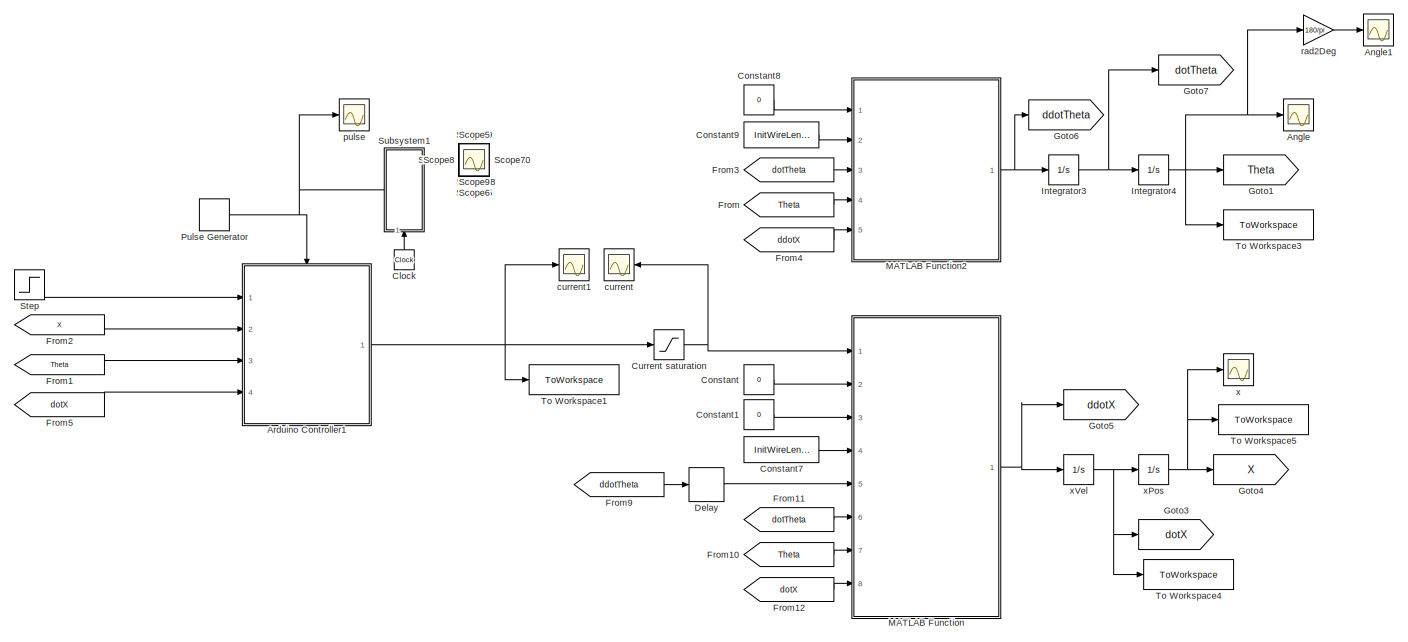
[diagram: root canvas - part 1/2, most of the canvas]
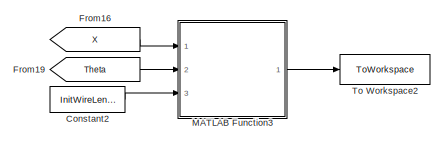
[diagram: root canvas - part 2/2, top right region]
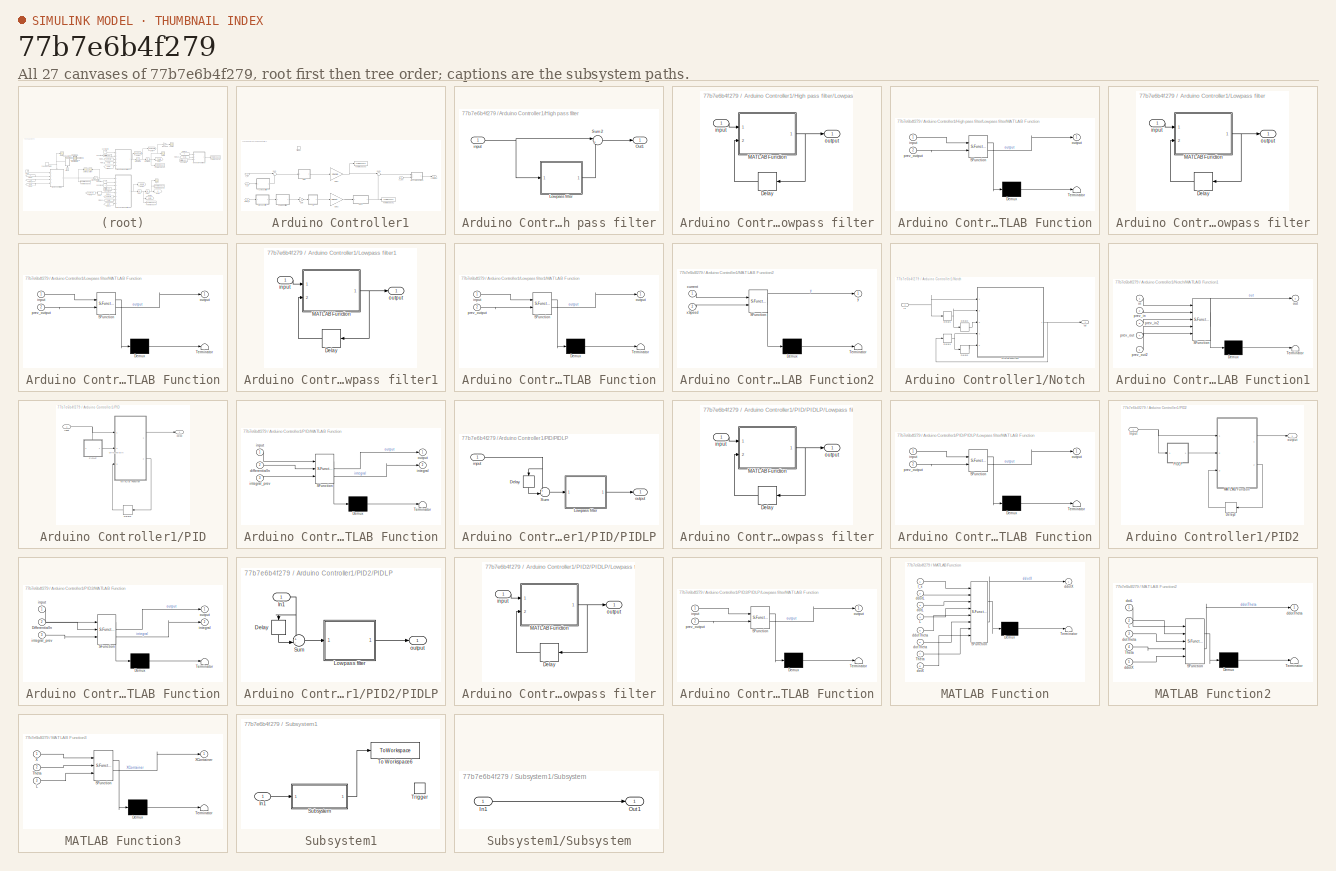
[diagram: thumbnail index - all 27 canvases of the model, root first then tree order]
MODEL slx_77b7e6b4f279
KIND model
CONFIG AbsTol = auto
CONFIG EnableMultiTasking = off
CONFIG FixedStep = auto
CONFIG MaxStep = 0.0001
CONFIG MinStep = auto
CONFIG RelTol = 1e-3
CONFIG SampleTimeConstraint = Unconstrained
CONFIG SolverName = VariableStepAuto
CONFIG StartTime = 0.0
CONFIG StopTime = 21
BLOCK [Scope] Angle
  Floating = off
  NumInputPorts = 1
  Ports = [1]
  ScopeSpecificationString = Simulink.scopes.TimeScopeBlockCfg('CurrentConfiguration', extmgr.ConfigurationSet(extmgr.Configuration('Core','General UI',true),extmgr.Configuration('Core','Source UI',true),extmgr.Configuration('Sources','WiredSimulink',true,'DataLoggingVariableName','ScopeData2'),extmgr.Configuration('Visuals','Time Domain',true,'SerializedDisplays',{struct('MinYLimReal','-0.03802','MaxYLimReal','0.01882','YLab...<+1470ch>
BLOCK [Scope] Angle1
  Floating = off
  NumInputPorts = 1
  Ports = [1]
  ScopeSpecificationString = Simulink.scopes.TimeScopeBlockCfg('CurrentConfiguration', extmgr.ConfigurationSet(extmgr.Configuration('Core','General UI',true),extmgr.Configuration('Core','Source UI',true),extmgr.Configuration('Sources','WiredSimulink',true,'DataLoggingVariableName','ScopeData1'),extmgr.Configuration('Visuals','Time Domain',true,'SerializedDisplays',{struct('MinYLimReal','-9.72683','MaxYLimReal','10.59698','YLa...<+1495ch>
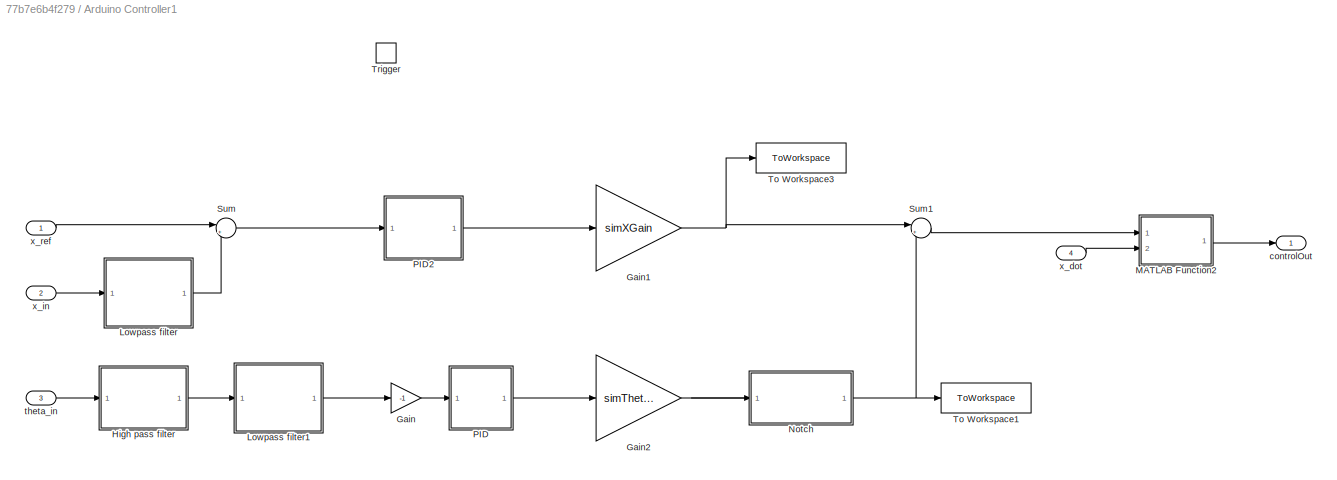
BLOCK [SubSystem] Arduino Controller1
  Ports = [4, 1, 0, 1]
  RequestExecContextInheritance = off
BLOCK [Gain] Arduino Controller1/Gain
  Gain = -1
BLOCK [Gain] Arduino Controller1/Gain1
  Gain = simXGain
BLOCK [Gain] Arduino Controller1/Gain2
  Gain = simThetaGain
BLOCK [SubSystem] Arduino Controller1/High pass filter
  Ports = [1, 1]
  RequestExecContextInheritance = off
BLOCK [SubSystem] Arduino Controller1/High pass filter/Lowpass filter
  Ports = [1, 1]
  RequestExecContextInheritance = off
BLOCK [Delay] Arduino Controller1/High pass filter/Lowpass filter/Delay
  DelayLength = 1
  InitialCondition = 0
  InputPortMap = u0
  NameLocation = top
  Ports = [1, 1]
BLOCK [SubSystem] Arduino Controller1/High pass filter/Lowpass filter/MATLAB Function
  ErrorFcn = Stateflow.Translate.translate
  PermitHierarchicalResolution = ExplicitOnly
  Ports = [2, 1]
  RequestExecContextInheritance = off
  SFBlockType = MATLAB Function
  TreatAsAtomicUnit = on
BLOCK [Demux] Arduino Controller1/High pass filter/Lowpass filter/MATLAB Function/ Demux 
  Outputs = 1
  Ports = [1, 1]
BLOCK [S-Function] Arduino Controller1/High pass filter/Lowpass filter/MATLAB Function/ SFunction 
  EnableBusSupport = on
  FunctionName = sf_sfun
  Parameters = hptau,ts
  PortCounts = [2 2]
  Ports = [2, 2]
  SFcnIsStateOwnerBlock = off
  SFunctionDeploymentMode = off
  Tag = Stateflow S-Function 1
BLOCK [Terminator] Arduino Controller1/High pass filter/Lowpass filter/MATLAB Function/ Terminator 
BLOCK [Inport] Arduino Controller1/High pass filter/Lowpass filter/MATLAB Function/input
BLOCK [Outport] Arduino Controller1/High pass filter/Lowpass filter/MATLAB Function/output
BLOCK [Inport] Arduino Controller1/High pass filter/Lowpass filter/MATLAB Function/prev_output
  Port = 2
BLOCK [Inport] Arduino Controller1/High pass filter/Lowpass filter/input
BLOCK [Outport] Arduino Controller1/High pass filter/Lowpass filter/output
BLOCK [Outport] Arduino Controller1/High pass filter/Out1
BLOCK [Sum] Arduino Controller1/High pass filter/Sum2
  Inputs = |+-
  Ports = [2, 1]
BLOCK [Inport] Arduino Controller1/High pass filter/input
BLOCK [SubSystem] Arduino Controller1/Lowpass filter
  Ports = [1, 1]
  RequestExecContextInheritance = off
BLOCK [Delay] Arduino Controller1/Lowpass filter/Delay
  DelayLength = 1
  InitialCondition = 0
  InputPortMap = u0
  NameLocation = top
  Ports = [1, 1]
BLOCK [SubSystem] Arduino Controller1/Lowpass filter/MATLAB Function
  ErrorFcn = Stateflow.Translate.translate
  PermitHierarchicalResolution = ExplicitOnly
  Ports = [2, 1]
  RequestExecContextInheritance = off
  SFBlockType = MATLAB Function
  TreatAsAtomicUnit = on
BLOCK [Demux] Arduino Controller1/Lowpass filter/MATLAB Function/ Demux 
  Outputs = 1
  Ports = [1, 1]
BLOCK [S-Function] Arduino Controller1/Lowpass filter/MATLAB Function/ SFunction 
  EnableBusSupport = on
  FunctionName = sf_sfun
  Parameters = lpxPostau,ts
  PortCounts = [2 2]
  Ports = [2, 2]
  SFcnIsStateOwnerBlock = off
  SFunctionDeploymentMode = off
  Tag = Stateflow S-Function 11
BLOCK [Terminator] Arduino Controller1/Lowpass filter/MATLAB Function/ Terminator 
BLOCK [Inport] Arduino Controller1/Lowpass filter/MATLAB Function/input
BLOCK [Outport] Arduino Controller1/Lowpass filter/MATLAB Function/output
BLOCK [Inport] Arduino Controller1/Lowpass filter/MATLAB Function/prev_output
  Port = 2
BLOCK [Inport] Arduino Controller1/Lowpass filter/input
BLOCK [Outport] Arduino Controller1/Lowpass filter/output
BLOCK [SubSystem] Arduino Controller1/Lowpass filter1
  Ports = [1, 1]
  RequestExecContextInheritance = off
BLOCK [Delay] Arduino Controller1/Lowpass filter1/Delay
  DelayLength = 1
  InitialCondition = 0
  InputPortMap = u0
  NameLocation = top
  Ports = [1, 1]
BLOCK [SubSystem] Arduino Controller1/Lowpass filter1/MATLAB Function
  ErrorFcn = Stateflow.Translate.translate
  PermitHierarchicalResolution = ExplicitOnly
  Ports = [2, 1]
  RequestExecContextInheritance = off
  SFBlockType = MATLAB Function
  TreatAsAtomicUnit = on
BLOCK [Demux] Arduino Controller1/Lowpass filter1/MATLAB Function/ Demux 
  Outputs = 1
  Ports = [1, 1]
BLOCK [S-Function] Arduino Controller1/Lowpass filter1/MATLAB Function/ SFunction 
  EnableBusSupport = on
  FunctionName = sf_sfun
  Parameters = lpxPostau,ts
  PortCounts = [2 2]
  Ports = [2, 2]
  SFcnIsStateOwnerBlock = off
  SFunctionDeploymentMode = off
  Tag = Stateflow S-Function 12
BLOCK [Terminator] Arduino Controller1/Lowpass filter1/MATLAB Function/ Terminator 
BLOCK [Inport] Arduino Controller1/Lowpass filter1/MATLAB Function/input
BLOCK [Outport] Arduino Controller1/Lowpass filter1/MATLAB Function/output
BLOCK [Inport] Arduino Controller1/Lowpass filter1/MATLAB Function/prev_output
  Port = 2
BLOCK [Inport] Arduino Controller1/Lowpass filter1/input
BLOCK [Outport] Arduino Controller1/Lowpass filter1/output
BLOCK [SubSystem] Arduino Controller1/MATLAB Function2
  ErrorFcn = Stateflow.Translate.translate
  PermitHierarchicalResolution = ExplicitOnly
  Ports = [2, 1]
  RequestExecContextInheritance = off
  SFBlockType = MATLAB Function
  TreatAsAtomicUnit = on
BLOCK [Demux] Arduino Controller1/MATLAB Function2/ Demux 
  Outputs = 1
  Ports = [1, 1]
BLOCK [S-Function] Arduino Controller1/MATLAB Function2/ SFunction 
  EnableBusSupport = on
  FunctionName = sf_sfun
  PortCounts = [2 2]
  Ports = [2, 2]
  SFcnIsStateOwnerBlock = off
  SFunctionDeploymentMode = off
  Tag = Stateflow S-Function 7
BLOCK [Terminator] Arduino Controller1/MATLAB Function2/ Terminator 
BLOCK [Inport] Arduino Controller1/MATLAB Function2/current
BLOCK [Inport] Arduino Controller1/MATLAB Function2/xSpeed
  Port = 2
BLOCK [Outport] Arduino Controller1/MATLAB Function2/y
BLOCK [SubSystem] Arduino Controller1/Notch
  Ports = [1, 1]
  RequestExecContextInheritance = off
BLOCK [Delay] Arduino Controller1/Notch/Delay1
  DelayLength = 1
  InitialCondition = 0
  InputPortMap = u0
  Ports = [1, 1]
BLOCK [Delay] Arduino Controller1/Notch/Delay2
  DelayLength = 1
  InitialCondition = 0
  InputPortMap = u0
  Ports = [1, 1]
BLOCK [Delay] Arduino Controller1/Notch/Delay4
  DelayLength = 1
  InitialCondition = 0
  InputPortMap = u0
  Ports = [1, 1]
BLOCK [Delay] Arduino Controller1/Notch/Delay5
  DelayLength = 1
  InitialCondition = 0
  InputPortMap = u0
  Ports = [1, 1]
BLOCK [SubSystem] Arduino Controller1/Notch/MATLAB Function1
  ErrorFcn = Stateflow.Translate.translate
  PermitHierarchicalResolution = ExplicitOnly
  Ports = [5, 1]
  RequestExecContextInheritance = off
  SFBlockType = MATLAB Function
  TreatAsAtomicUnit = on
BLOCK [Demux] Arduino Controller1/Notch/MATLAB Function1/ Demux 
  Outputs = 1
  Ports = [1, 1]
BLOCK [S-Function] Arduino Controller1/Notch/MATLAB Function1/ SFunction 
  EnableBusSupport = on
  FunctionName = sf_sfun
  PortCounts = [5 2]
  Ports = [5, 2]
  SFcnIsStateOwnerBlock = off
  SFunctionDeploymentMode = off
  Tag = Stateflow S-Function 5
BLOCK [Terminator] Arduino Controller1/Notch/MATLAB Function1/ Terminator 
BLOCK [Inport] Arduino Controller1/Notch/MATLAB Function1/in
BLOCK [Outport] Arduino Controller1/Notch/MATLAB Function1/out
BLOCK [Inport] Arduino Controller1/Notch/MATLAB Function1/prev_in
  Port = 2
BLOCK [Inport] Arduino Controller1/Notch/MATLAB Function1/prev_in2
  Port = 3
BLOCK [Inport] Arduino Controller1/Notch/MATLAB Function1/prev_out
  Port = 4
BLOCK [Inport] Arduino Controller1/Notch/MATLAB Function1/prev_out2
  Port = 5
BLOCK [Inport] Arduino Controller1/Notch/in
BLOCK [Outport] Arduino Controller1/Notch/out
BLOCK [SubSystem] Arduino Controller1/PID
  Ports = [1, 1]
  RequestExecContextInheritance = off
BLOCK [Delay] Arduino Controller1/PID/Delay3
  DelayLength = 1
  InitialCondition = 0
  InputPortMap = u0
  NameLocation = top
  Ports = [1, 1]
BLOCK [SubSystem] Arduino Controller1/PID/MATLAB Function
  ErrorFcn = Stateflow.Translate.translate
  PermitHierarchicalResolution = ExplicitOnly
  Ports = [3, 2]
  RequestExecContextInheritance = off
  SFBlockType = MATLAB Function
  TreatAsAtomicUnit = on
BLOCK [Demux] Arduino Controller1/PID/MATLAB Function/ Demux 
  Outputs = 1
  Ports = [1, 1]
BLOCK [S-Function] Arduino Controller1/PID/MATLAB Function/ SFunction 
  EnableBusSupport = on
  FunctionName = sf_sfun
  Parameters = ts
  PortCounts = [3 3]
  Ports = [3, 3]
  SFcnIsStateOwnerBlock = off
  SFunctionDeploymentMode = off
  Tag = Stateflow S-Function 6
BLOCK [Terminator] Arduino Controller1/PID/MATLAB Function/ Terminator 
BLOCK [Inport] Arduino Controller1/PID/MATLAB Function/differentialIn
  Port = 2
BLOCK [Inport] Arduino Controller1/PID/MATLAB Function/input
BLOCK [Outport] Arduino Controller1/PID/MATLAB Function/integral
  Port = 2
BLOCK [Inport] Arduino Controller1/PID/MATLAB Function/integral_prev
  Port = 3
BLOCK [Outport] Arduino Controller1/PID/MATLAB Function/output
BLOCK [SubSystem] Arduino Controller1/PID/PIDLP
  PortSchema = {"entries":[{"content":{"sides":[{"content":{"connectorIds":[]},"type":"ConnectorPlacement.EquallySpacedRectSide","uuid":"d3ec65c8-fd45-49f9-916c-a8c1f5c7b970"},{"content":{"connectorIds":["Out1"],"side":"RIGHT"},"type":"ConnectorPlacement.EquallySpacedRectSide","uuid":"4f9c2e43-6a5d-46ea-b9d2-fae3b3feabbe"},{"content":{"connectorIds":["In1"],"side":"TOP"},"type":"ConnectorPlacement.EquallySpacedR...<+240ch>
  Ports = [1, 1]
  RequestExecContextInheritance = off
BLOCK [Delay] Arduino Controller1/PID/PIDLP/Delay
  DelayLength = 1
  InitialCondition = 0
  InputPortMap = u0
  NameLocation = left
  Ports = [1, 1]
BLOCK [SubSystem] Arduino Controller1/PID/PIDLP/Lowpass filter
  Ports = [1, 1]
  RequestExecContextInheritance = off
BLOCK [Delay] Arduino Controller1/PID/PIDLP/Lowpass filter/Delay
  DelayLength = 1
  InitialCondition = 0
  InputPortMap = u0
  NameLocation = top
  Ports = [1, 1]
BLOCK [SubSystem] Arduino Controller1/PID/PIDLP/Lowpass filter/MATLAB Function
  ErrorFcn = Stateflow.Translate.translate
  PermitHierarchicalResolution = ExplicitOnly
  Ports = [2, 1]
  RequestExecContextInheritance = off
  SFBlockType = MATLAB Function
  TreatAsAtomicUnit = on
BLOCK [Demux] Arduino Controller1/PID/PIDLP/Lowpass filter/MATLAB Function/ Demux 
  Outputs = 1
  Ports = [1, 1]
BLOCK [S-Function] Arduino Controller1/PID/PIDLP/Lowpass filter/MATLAB Function/ SFunction 
  EnableBusSupport = on
  FunctionName = sf_sfun
  Parameters = lpThetaContau,ts
  PortCounts = [2 2]
  Ports = [2, 2]
  SFcnIsStateOwnerBlock = off
  SFunctionDeploymentMode = off
  Tag = Stateflow S-Function 10
BLOCK [Terminator] Arduino Controller1/PID/PIDLP/Lowpass filter/MATLAB Function/ Terminator 
BLOCK [Inport] Arduino Controller1/PID/PIDLP/Lowpass filter/MATLAB Function/input
BLOCK [Outport] Arduino Controller1/PID/PIDLP/Lowpass filter/MATLAB Function/output
BLOCK [Inport] Arduino Controller1/PID/PIDLP/Lowpass filter/MATLAB Function/prev_output
  Port = 2
BLOCK [Inport] Arduino Controller1/PID/PIDLP/Lowpass filter/input
BLOCK [Outport] Arduino Controller1/PID/PIDLP/Lowpass filter/output
BLOCK [Sum] Arduino Controller1/PID/PIDLP/Sum
  Inputs = +-|
  Ports = [2, 1]
BLOCK [Inport] Arduino Controller1/PID/PIDLP/input
BLOCK [Outport] Arduino Controller1/PID/PIDLP/output
BLOCK [Inport] Arduino Controller1/PID/input
BLOCK [Outport] Arduino Controller1/PID/output
BLOCK [SubSystem] Arduino Controller1/PID2
  Ports = [1, 1]
  RequestExecContextInheritance = off
BLOCK [Delay] Arduino Controller1/PID2/Delay3
  DelayLength = 1
  InitialCondition = 0
  InputPortMap = u0
  NameLocation = top
  Ports = [1, 1]
BLOCK [Inport] Arduino Controller1/PID2/Input
BLOCK [SubSystem] Arduino Controller1/PID2/MATLAB Function
  ErrorFcn = Stateflow.Translate.translate
  PermitHierarchicalResolution = ExplicitOnly
  Ports = [3, 2]
  RequestExecContextInheritance = off
  SFBlockType = MATLAB Function
  TreatAsAtomicUnit = on
BLOCK [Demux] Arduino Controller1/PID2/MATLAB Function/ Demux 
  Outputs = 1
  Ports = [1, 1]
BLOCK [S-Function] Arduino Controller1/PID2/MATLAB Function/ SFunction 
  EnableBusSupport = on
  FunctionName = sf_sfun
  Parameters = xConD,xConI,xConP
  PortCounts = [3 3]
  Ports = [3, 3]
  SFcnIsStateOwnerBlock = off
  SFunctionDeploymentMode = off
  Tag = Stateflow S-Function 8
BLOCK [Terminator] Arduino Controller1/PID2/MATLAB Function/ Terminator 
BLOCK [Inport] Arduino Controller1/PID2/MATLAB Function/DifferentialIn
  Port = 2
BLOCK [Inport] Arduino Controller1/PID2/MATLAB Function/input
BLOCK [Outport] Arduino Controller1/PID2/MATLAB Function/integral
  Port = 2
BLOCK [Inport] Arduino Controller1/PID2/MATLAB Function/integral_prev
  Port = 3
BLOCK [Outport] Arduino Controller1/PID2/MATLAB Function/output
BLOCK [SubSystem] Arduino Controller1/PID2/PIDLP
  Ports = [1, 1]
  RequestExecContextInheritance = off
BLOCK [Delay] Arduino Controller1/PID2/PIDLP/Delay
  DelayLength = 1
  InitialCondition = 0
  InputPortMap = u0
  NameLocation = left
  Ports = [1, 1]
BLOCK [Inport] Arduino Controller1/PID2/PIDLP/In1
BLOCK [SubSystem] Arduino Controller1/PID2/PIDLP/Lowpass filter
  Ports = [1, 1]
  RequestExecContextInheritance = off
BLOCK [Delay] Arduino Controller1/PID2/PIDLP/Lowpass filter/Delay
  DelayLength = 1
  InitialCondition = 0
  InputPortMap = u0
  NameLocation = top
  Ports = [1, 1]
BLOCK [SubSystem] Arduino Controller1/PID2/PIDLP/Lowpass filter/MATLAB Function
  ErrorFcn = Stateflow.Translate.translate
  PermitHierarchicalResolution = ExplicitOnly
  Ports = [2, 1]
  RequestExecContextInheritance = off
  SFBlockType = MATLAB Function
  TreatAsAtomicUnit = on
BLOCK [Demux] Arduino Controller1/PID2/PIDLP/Lowpass filter/MATLAB Function/ Demux 
  Outputs = 1
  Ports = [1, 1]
BLOCK [S-Function] Arduino Controller1/PID2/PIDLP/Lowpass filter/MATLAB Function/ SFunction 
  EnableBusSupport = on
  FunctionName = sf_sfun
  Parameters = lpxContau,ts
  PortCounts = [2 2]
  Ports = [2, 2]
  SFcnIsStateOwnerBlock = off
  SFunctionDeploymentMode = off
  Tag = Stateflow S-Function 9
BLOCK [Terminator] Arduino Controller1/PID2/PIDLP/Lowpass filter/MATLAB Function/ Terminator 
BLOCK [Inport] Arduino Controller1/PID2/PIDLP/Lowpass filter/MATLAB Function/input
BLOCK [Outport] Arduino Controller1/PID2/PIDLP/Lowpass filter/MATLAB Function/output
BLOCK [Inport] Arduino Controller1/PID2/PIDLP/Lowpass filter/MATLAB Function/prev_output
  Port = 2
BLOCK [Inport] Arduino Controller1/PID2/PIDLP/Lowpass filter/input
BLOCK [Outport] Arduino Controller1/PID2/PIDLP/Lowpass filter/output
BLOCK [Sum] Arduino Controller1/PID2/PIDLP/Sum
  Inputs = +-|
  Ports = [2, 1]
BLOCK [Outport] Arduino Controller1/PID2/PIDLP/output
BLOCK [Outport] Arduino Controller1/PID2/output
BLOCK [Sum] Arduino Controller1/Sum
  Inputs = |+-
  Ports = [2, 1]
BLOCK [Sum] Arduino Controller1/Sum1
  Inputs = |+-
  Ports = [2, 1]
BLOCK [ToWorkspace] Arduino Controller1/To Workspace1
  FixptAsFi = on
  MaxDataPoints = inf
  Ports = [1]
  SampleTime = -1
  VariableName = Anglecon
BLOCK [ToWorkspace] Arduino Controller1/To Workspace3
  FixptAsFi = on
  MaxDataPoints = inf
  Ports = [1]
  SampleTime = -1
  VariableName = Xcon
BLOCK [TriggerPort] Arduino Controller1/Trigger
  PortDimensions = 1
  Ports = []
  StatesWhenEnabling = held
  VariantControl = (inherit)
BLOCK [Outport] Arduino Controller1/controlOut
BLOCK [Inport] Arduino Controller1/theta_in
  Port = 3
BLOCK [Inport] Arduino Controller1/x_dot
  Port = 4
BLOCK [Inport] Arduino Controller1/x_in
  Port = 2
BLOCK [Inport] Arduino Controller1/x_ref
BLOCK [Clock] Clock
  NameLocation = right
BLOCK [Constant] Constant
  Value = 0
BLOCK [Constant] Constant1
  Value = 0
BLOCK [Constant] Constant2
  Value = InitWireLength
BLOCK [Constant] Constant7
  Value = InitWireLength
BLOCK [Constant] Constant8
  Value = 0
BLOCK [Constant] Constant9
  Value = InitWireLength
BLOCK [Saturate] Current saturation
  LowerLimit = -10
  UpperLimit = 10
BLOCK [Delay] Delay
  DelayLength = 1
  InitialCondition = 0
  InputPortMap = u0
  Ports = [1, 1]
BLOCK [From] From
  GotoTag = Theta
BLOCK [From] From1
  GotoTag = Theta
BLOCK [From] From10
  GotoTag = Theta
BLOCK [From] From11
  GotoTag = dotTheta
BLOCK [From] From12
  GotoTag = dotX
BLOCK [From] From16
  GotoTag = X
BLOCK [From] From19
  GotoTag = Theta
BLOCK [From] From2
  GotoTag = X
BLOCK [From] From3
  GotoTag = dotTheta
BLOCK [From] From4
  GotoTag = ddotX
BLOCK [From] From5
  GotoTag = dotX
BLOCK [From] From9
  GotoTag = ddotTheta
BLOCK [Goto] Goto1
  GotoTag = Theta
BLOCK [Goto] Goto3
  GotoTag = dotX
BLOCK [Goto] Goto4
  GotoTag = X
BLOCK [Goto] Goto5
  GotoTag = ddotX
BLOCK [Goto] Goto6
  GotoTag = ddotTheta
BLOCK [Goto] Goto7
  GotoTag = dotTheta
BLOCK [Integrator] Integrator3
  Ports = [1, 1]
BLOCK [Integrator] Integrator4
  Ports = [1, 1]
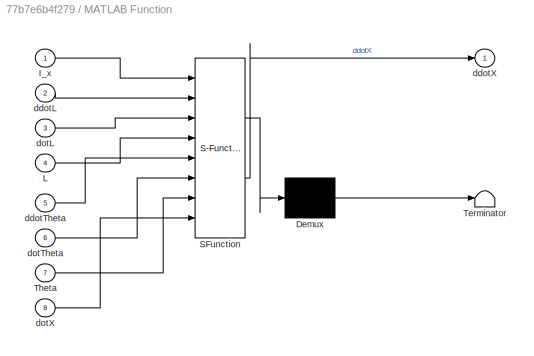
BLOCK [SubSystem] MATLAB Function
  ErrorFcn = Stateflow.Translate.translate
  PermitHierarchicalResolution = ExplicitOnly
  Ports = [8, 1]
  RequestExecContextInheritance = off
  SFBlockType = MATLAB Function
  TreatAsAtomicUnit = on
BLOCK [Demux] MATLAB Function/ Demux 
  Outputs = 1
  Ports = [1, 1]
BLOCK [S-Function] MATLAB Function/ SFunction 
  EnableBusSupport = on
  FunctionName = sf_sfun
  Parameters = B_x,J_x,cFrictionX,k_ex,m_l,m_t,r_x,sFrictionX
  PortCounts = [8 2]
  Ports = [8, 2]
  SFcnIsStateOwnerBlock = off
  SFunctionDeploymentMode = off
  Tag = Stateflow S-Function 2
BLOCK [Terminator] MATLAB Function/ Terminator 
BLOCK [Inport] MATLAB Function/I_x
BLOCK [Inport] MATLAB Function/L
  Port = 4
BLOCK [Inport] MATLAB Function/Theta
  Port = 7
BLOCK [Inport] MATLAB Function/ddotL
  Port = 2
BLOCK [Inport] MATLAB Function/ddotTheta
  Port = 5
BLOCK [Outport] MATLAB Function/ddotX
BLOCK [Inport] MATLAB Function/dotL
  Port = 3
BLOCK [Inport] MATLAB Function/dotTheta
  Port = 6
BLOCK [Inport] MATLAB Function/dotX
  Port = 8
BLOCK [SubSystem] MATLAB Function2
  ErrorFcn = Stateflow.Translate.translate
  PermitHierarchicalResolution = ExplicitOnly
  Ports = [5, 1]
  RequestExecContextInheritance = off
  SFBlockType = MATLAB Function
  TreatAsAtomicUnit = on
BLOCK [Demux] MATLAB Function2/ Demux 
  Outputs = 1
  Ports = [1, 1]
BLOCK [S-Function] MATLAB Function2/ SFunction 
  EnableBusSupport = on
  FunctionName = sf_sfun
  Parameters = g
  PortCounts = [5 2]
  Ports = [5, 2]
  SFcnIsStateOwnerBlock = off
  SFunctionDeploymentMode = off
  Tag = Stateflow S-Function 3
BLOCK [Terminator] MATLAB Function2/ Terminator 
BLOCK [Inport] MATLAB Function2/L
  Port = 2
BLOCK [Inport] MATLAB Function2/Theta
  Port = 4
BLOCK [Outport] MATLAB Function2/ddotTheta
BLOCK [Inport] MATLAB Function2/ddotX
  Port = 5
BLOCK [Inport] MATLAB Function2/dotL
BLOCK [Inport] MATLAB Function2/dotTheta
  Port = 3
BLOCK [SubSystem] MATLAB Function3
  ErrorFcn = Stateflow.Translate.translate
  PermitHierarchicalResolution = ExplicitOnly
  Ports = [3, 1]
  RequestExecContextInheritance = off
  SFBlockType = MATLAB Function
  TreatAsAtomicUnit = on
BLOCK [Demux] MATLAB Function3/ Demux 
  Outputs = 1
  Ports = [1, 1]
BLOCK [S-Function] MATLAB Function3/ SFunction 
  EnableBusSupport = on
  FunctionName = sf_sfun
  PortCounts = [3 2]
  Ports = [3, 2]
  SFcnIsStateOwnerBlock = off
  SFunctionDeploymentMode = off
  Tag = Stateflow S-Function 4
BLOCK [Terminator] MATLAB Function3/ Terminator 
BLOCK [Inport] MATLAB Function3/L
  Port = 3
BLOCK [Inport] MATLAB Function3/Theta
  Port = 2
BLOCK [Inport] MATLAB Function3/X
BLOCK [Outport] MATLAB Function3/XContainer
BLOCK [DiscretePulseGenerator] Pulse Generator
  Period = .01
  Ports = [0, 1]
  PulseType = Time based
  PulseWidth = 5
BLOCK [Scope] Scope
  Floating = off
  IOType = viewer
  NumInputPorts = 1
  Ports = []
  ScopeSpecificationString = Simulink.scopes.TimeScopeBlockCfg('CurrentConfiguration', extmgr.ConfigurationSet(extmgr.Configuration('Core','General UI',true),extmgr.Configuration('Core','Source UI',true),extmgr.Configuration('Sources','WiredSimulink',true),extmgr.Configuration('Visuals','Time Domain',true,'SerializedDisplays',{struct('MinYLimReal','0.4','MaxYLimReal','0.6','YLabelReal','','MinYLimMag','0.4','MaxYLimMag','0.6'...<+1350ch>
BLOCK [Scope] Scope1
  Floating = off
  IOType = viewer
  NumInputPorts = 1
  Ports = []
  ScopeSpecificationString = Simulink.scopes.TimeScopeBlockCfg('CurrentConfiguration', extmgr.ConfigurationSet(extmgr.Configuration('Core','General UI',true),extmgr.Configuration('Core','Source UI',true),extmgr.Configuration('Sources','WiredSimulink',true,'DataLoggingVariableName','ScopeData1'),extmgr.Configuration('Visuals','Time Domain',true,'SerializedDisplays',{struct('MinYLimReal','-2.23172','MaxYLimReal','0.24797','YLab...<+1389ch>
BLOCK [Scope] Scope10
  Floating = off
  IOType = viewer
  NumInputPorts = 1
  Ports = []
  ScopeSpecificationString = Simulink.scopes.TimeScopeBlockCfg('CurrentConfiguration', extmgr.ConfigurationSet(extmgr.Configuration('Core','General UI',true),extmgr.Configuration('Core','Source UI',true),extmgr.Configuration('Sources','WiredSimulink',true,'DataLoggingVariableName','ScopeData4'),extmgr.Configuration('Visuals','Time Domain',true,'SerializedDisplays',{struct('MinYLimReal','-184.95351','MaxYLimReal','45.98461','Y...<+1400ch>
BLOCK [Scope] Scope11
  Floating = off
  IOType = viewer
  NumInputPorts = 1
  Ports = []
  ScopeSpecificationString = Simulink.scopes.TimeScopeBlockCfg('CurrentConfiguration', extmgr.ConfigurationSet(extmgr.Configuration('Core','General UI',true),extmgr.Configuration('Core','Source UI',true),extmgr.Configuration('Sources','WiredSimulink',true,'DataLoggingVariableName','ScopeData5'),extmgr.Configuration('Visuals','Time Domain',true,'SerializedDisplays',{struct('MinYLimReal','-0.602','MaxYLimReal','5.41798','YLabel...<+1384ch>
BLOCK [Scope] Scope12
  Floating = off
  IOType = viewer
  NumInputPorts = 1
  Ports = []
  ScopeSpecificationString = Simulink.scopes.TimeScopeBlockCfg('CurrentConfiguration', extmgr.ConfigurationSet(extmgr.Configuration('Core','General UI',true),extmgr.Configuration('Core','Source UI',true),extmgr.Configuration('Sources','WiredSimulink',true,'DataLoggingVariableName','ScopeData6'),extmgr.Configuration('Visuals','Time Domain',true,'SerializedDisplays',{struct('MinYLimReal','-3.375','MaxYLimReal','0.375','YLabelRe...<+1412ch>
BLOCK [Scope] Scope13
  Floating = off
  IOType = viewer
  NumInputPorts = 1
  Ports = []
  ScopeSpecificationString = Simulink.scopes.TimeScopeBlockCfg('CurrentConfiguration', extmgr.ConfigurationSet(extmgr.Configuration('Core','General UI',true),extmgr.Configuration('Core','Source UI',true),extmgr.Configuration('Sources','WiredSimulink',true,'DataLoggingVariableName','ScopeData7'),extmgr.Configuration('Visuals','Time Domain',true,'SerializedDisplays',{struct('MinYLimReal','-0.84833','MaxYLimReal','0.41026','YLab...<+1403ch>
BLOCK [Scope] Scope14
  Floating = off
  IOType = viewer
  NumInputPorts = 1
  Ports = []
  ScopeSpecificationString = Simulink.scopes.TimeScopeBlockCfg('CurrentConfiguration', extmgr.ConfigurationSet(extmgr.Configuration('Core','General UI',true),extmgr.Configuration('Core','Source UI',true),extmgr.Configuration('Sources','WiredSimulink',true,'DataLoggingVariableName','ScopeData1'),extmgr.Configuration('Visuals','Time Domain',true),extmgr.Configuration('Tools','Plot Navigation',true),extmgr.Configuration('Tools',...<+58ch>
BLOCK [Scope] Scope15
  Floating = off
  IOType = viewer
  NumInputPorts = 1
  Ports = []
  ScopeSpecificationString = Simulink.scopes.TimeScopeBlockCfg('CurrentConfiguration', extmgr.ConfigurationSet(extmgr.Configuration('Core','General UI',true),extmgr.Configuration('Core','Source UI',true),extmgr.Configuration('Sources','WiredSimulink',true,'DataLoggingVariableName','ScopeData1'),extmgr.Configuration('Visuals','Time Domain',true,'SerializedDisplays',{struct('MinYLimReal','0.15992','MaxYLimReal','1.09334','YLabe...<+1452ch>
BLOCK [Scope] Scope16
  Floating = off
  IOType = viewer
  NumInputPorts = 1
  Ports = []
  ScopeSpecificationString = Simulink.scopes.TimeScopeBlockCfg('CurrentConfiguration', extmgr.ConfigurationSet(extmgr.Configuration('Core','General UI',true),extmgr.Configuration('Core','Source UI',true),extmgr.Configuration('Sources','WiredSimulink',true,'DataLoggingVariableName','ScopeData2'),extmgr.Configuration('Visuals','Time Domain',true,'SerializedDisplays',{struct('MinYLimReal','-0.84375','MaxYLimReal','0.09375','YLab...<+1392ch>
BLOCK [Scope] Scope17
  Floating = off
  IOType = viewer
  NumInputPorts = 1
  Ports = []
  ScopeSpecificationString = Simulink.scopes.TimeScopeBlockCfg('CurrentConfiguration', extmgr.ConfigurationSet(extmgr.Configuration('Core','General UI',true),extmgr.Configuration('Core','Source UI',true),extmgr.Configuration('Sources','WiredSimulink',true,'DataLoggingVariableName','ScopeData3'),extmgr.Configuration('Visuals','Time Domain',true,'SerializedDisplays',{struct('MinYLimReal','-67837.95017','MaxYLimReal','7541.55155...<+1419ch>
BLOCK [Scope] Scope18
  Floating = off
  IOType = viewer
  NumInputPorts = 1
  Ports = []
  ScopeSpecificationString = Simulink.scopes.TimeScopeBlockCfg('CurrentConfiguration', extmgr.ConfigurationSet(extmgr.Configuration('Core','General UI',true),extmgr.Configuration('Core','Source UI',true),extmgr.Configuration('Sources','WiredSimulink',true,'DataLoggingVariableName','ScopeData4'),extmgr.Configuration('Visuals','Time Domain',true,'SerializedDisplays',{struct('MinYLimReal','-11.23057','MaxYLimReal','1.0751','YLab...<+1390ch>
BLOCK [Scope] Scope19
  Floating = off
  IOType = viewer
  NumInputPorts = 1
  Ports = []
  ScopeSpecificationString = Simulink.scopes.TimeScopeBlockCfg('CurrentConfiguration', extmgr.ConfigurationSet(extmgr.Configuration('Core','General UI',true),extmgr.Configuration('Core','Source UI',true),extmgr.Configuration('Sources','WiredSimulink',true,'DataLoggingVariableName','ScopeData5'),extmgr.Configuration('Visuals','Time Domain',true,'SerializedDisplays',{struct('MinYLimReal','-1.00000','MaxYLimReal','1.00000','YLab...<+1416ch>
BLOCK [Scope] Scope2
  Floating = off
  IOType = viewer
  NumInputPorts = 1
  Ports = []
  ScopeSpecificationString = Simulink.scopes.TimeScopeBlockCfg('CurrentConfiguration', extmgr.ConfigurationSet(extmgr.Configuration('Core','General UI',true),extmgr.Configuration('Core','Source UI',true),extmgr.Configuration('Sources','WiredSimulink',true,'DataLoggingVariableName','ScopeData1'),extmgr.Configuration('Visuals','Time Domain',true,'SerializedDisplays',{struct('MinYLimReal','-0.875','MaxYLimReal','7.875','YLabelRe...<+1376ch>
BLOCK [Scope] Scope20
  Floating = off
  IOType = viewer
  NumInputPorts = 1
  Ports = []
  ScopeSpecificationString = Simulink.scopes.TimeScopeBlockCfg('CurrentConfiguration', extmgr.ConfigurationSet(extmgr.Configuration('Core','General UI',true),extmgr.Configuration('Core','Source UI',true),extmgr.Configuration('Sources','WiredSimulink',true,'DataLoggingVariableName','ScopeData6'),extmgr.Configuration('Visuals','Time Domain',true,'SerializedDisplays',{struct('MinYLimReal','-1.00000','MaxYLimReal','1.00000','YLab...<+1416ch>
BLOCK [Scope] Scope3
  Floating = off
  IOType = viewer
  NumInputPorts = 1
  Ports = []
  ScopeSpecificationString = Simulink.scopes.TimeScopeBlockCfg('CurrentConfiguration', extmgr.ConfigurationSet(extmgr.Configuration('Core','General UI',true),extmgr.Configuration('Core','Source UI',true),extmgr.Configuration('Sources','WiredSimulink',true,'DataLoggingVariableName','ScopeData2'),extmgr.Configuration('Visuals','Time Domain',true,'SerializedDisplays',{struct('MinYLimReal','-0.11816','MaxYLimReal','0.13961','YLab...<+1424ch>
BLOCK [Scope] Scope4
  Floating = off
  IOType = viewer
  NumInputPorts = 1
  Ports = []
  ScopeSpecificationString = Simulink.scopes.TimeScopeBlockCfg('CurrentConfiguration', extmgr.ConfigurationSet(extmgr.Configuration('Core','General UI',true),extmgr.Configuration('Core','Source UI',true),extmgr.Configuration('Sources','WiredSimulink',true,'DataLoggingVariableName','ScopeData3'),extmgr.Configuration('Visuals','Time Domain',true,'SerializedDisplays',{struct('MinYLimReal','-1.2203','MaxYLimReal','0.87678','YLabe...<+1390ch>
BLOCK [Scope] Scope5
  Floating = off
  IOType = viewer
  NumInputPorts = 1
  Ports = []
  ScopeSpecificationString = Simulink.scopes.TimeScopeBlockCfg('CurrentConfiguration', extmgr.ConfigurationSet(extmgr.Configuration('Core','General UI',true),extmgr.Configuration('Core','Source UI',true),extmgr.Configuration('Sources','WiredSimulink',true,'DataLoggingVariableName','ScopeData4'),extmgr.Configuration('Visuals','Time Domain',true,'SerializedDisplays',{struct('MinYLimReal','-1.12216','MaxYLimReal','0.12475','YLab...<+1359ch>
BLOCK [Scope] Scope6
  Floating = off
  IOType = viewer
  NumInputPorts = 1
  Ports = []
  ScopeSpecificationString = Simulink.scopes.TimeScopeBlockCfg('CurrentConfiguration', extmgr.ConfigurationSet(extmgr.Configuration('Core','General UI',true),extmgr.Configuration('Core','Source UI',true),extmgr.Configuration('Sources','WiredSimulink',true,'DataLoggingVariableName','ScopeData5'),extmgr.Configuration('Visuals','Time Domain',true,'SerializedDisplays',{struct('MinYLimReal','-0.18322','MaxYLimReal','1.64895','YLab...<+1786ch>
BLOCK [Scope] Scope7
  Floating = off
  IOType = viewer
  NumInputPorts = 1
  Ports = []
  ScopeSpecificationString = Simulink.scopes.TimeScopeBlockCfg('CurrentConfiguration', extmgr.ConfigurationSet(extmgr.Configuration('Core','General UI',true),extmgr.Configuration('Core','Source UI',true),extmgr.Configuration('Sources','WiredSimulink',true,'DataLoggingVariableName','ScopeData1'),extmgr.Configuration('Visuals','Time Domain',true,'SerializedDisplays',{struct('MinYLimReal','-1.00000','MaxYLimReal','1.00000','YLab...<+1423ch>
BLOCK [Scope] Scope8
  Floating = off
  IOType = viewer
  NumInputPorts = 1
  Ports = []
  ScopeSpecificationString = Simulink.scopes.TimeScopeBlockCfg('CurrentConfiguration', extmgr.ConfigurationSet(extmgr.Configuration('Core','General UI',true),extmgr.Configuration('Core','Source UI',true),extmgr.Configuration('Sources','WiredSimulink',true,'DataLoggingVariableName','ScopeData2'),extmgr.Configuration('Visuals','Time Domain',true,'SerializedDisplays',{struct('MinYLimReal','-1.00000','MaxYLimReal','1.00000','YLab...<+1424ch>
BLOCK [Scope] Scope9
  Floating = off
  IOType = viewer
  NumInputPorts = 1
  Ports = []
  ScopeSpecificationString = Simulink.scopes.TimeScopeBlockCfg('CurrentConfiguration', extmgr.ConfigurationSet(extmgr.Configuration('Core','General UI',true),extmgr.Configuration('Core','Source UI',true),extmgr.Configuration('Sources','WiredSimulink',true,'DataLoggingVariableName','ScopeData3'),extmgr.Configuration('Visuals','Time Domain',true,'SerializedDisplays',{struct('MinYLimReal','-74.97692','MaxYLimReal','63.88632','YL...<+1393ch>
BLOCK [Step] Step
  SampleTime = 0
  Time = 0
BLOCK [SubSystem] Subsystem1
  NameLocation = right
  Ports = [1, 0, 0, 1]
  RequestExecContextInheritance = off
BLOCK [Inport] Subsystem1/In1
BLOCK [SubSystem] Subsystem1/Subsystem
  Ports = [1, 1]
  RequestExecContextInheritance = off
BLOCK [Inport] Subsystem1/Subsystem/In1
BLOCK [Outport] Subsystem1/Subsystem/Out1
BLOCK [ToWorkspace] Subsystem1/To Workspace6
  FixptAsFi = on
  MaxDataPoints = inf
  Ports = [1]
  SampleTime = -1
  VariableName = conTime
BLOCK [TriggerPort] Subsystem1/Trigger
  PortDimensions = 1
  Ports = []
  StatesWhenEnabling = held
  VariantControl = (inherit)
BLOCK [ToWorkspace] To Workspace1
  FixptAsFi = on
  MaxDataPoints = inf
  Ports = [1]
  SampleTime = -1
  VariableName = ControllerCurrent
BLOCK [ToWorkspace] To Workspace2
  FixptAsFi = on
  MaxDataPoints = inf
  Ports = [1]
  SampleTime = -1
  VariableName = XContainer
BLOCK [ToWorkspace] To Workspace3
  FixptAsFi = on
  MaxDataPoints = inf
  Ports = [1]
  SampleTime = -1
  VariableName = Theta1
BLOCK [ToWorkspace] To Workspace4
  FixptAsFi = on
  MaxDataPoints = inf
  Ports = [1]
  SampleTime = -1
  VariableName = dotX1
BLOCK [ToWorkspace] To Workspace5
  FixptAsFi = on
  MaxDataPoints = inf
  Ports = [1]
  SampleTime = -1
  VariableName = X1
BLOCK [Scope] current
  Floating = off
  NameLocation = top
  NumInputPorts = 1
  Ports = [1]
  ScopeSpecificationString = Simulink.scopes.TimeScopeBlockCfg('CurrentConfiguration', extmgr.ConfigurationSet(extmgr.Configuration('Core','General UI',true),extmgr.Configuration('Core','Source UI',true),extmgr.Configuration('Sources','WiredSimulink',true,'DataLoggingVariableName','ScopeData3'),extmgr.Configuration('Visuals','Time Domain',true,'SerializedDisplays',{struct('MinYLimReal','-6.15729','MaxYLimReal','11.79525','YLa...<+1506ch>
BLOCK [Scope] current1
  Floating = off
  NameLocation = top
  NumInputPorts = 1
  Ports = [1]
  ScopeSpecificationString = Simulink.scopes.TimeScopeBlockCfg('CurrentConfiguration', extmgr.ConfigurationSet(extmgr.Configuration('Core','General UI',true),extmgr.Configuration('Core','Source UI',true),extmgr.Configuration('Sources','WiredSimulink',true,'DataLoggingVariableName','ScopeData1'),extmgr.Configuration('Visuals','Time Domain',true,'SerializedDisplays',{struct('MinYLimReal','-1.17583','MaxYLimReal','7.48502','YLab...<+1490ch>
BLOCK [Scope] pulse
  Floating = off
  NumInputPorts = 1
  Ports = [1]
  ScopeSpecificationString = Simulink.scopes.TimeScopeBlockCfg('CurrentConfiguration', extmgr.ConfigurationSet(extmgr.Configuration('Core','General UI',true),extmgr.Configuration('Core','Source UI',true),extmgr.Configuration('Sources','WiredSimulink',true,'DataLoggingVariableName','ScopeData1'),extmgr.Configuration('Visuals','Time Domain',true,'SerializedDisplays',{struct('MinYLimReal','-0.05105','MaxYLimReal','1.03012','YLab...<+1473ch>
BLOCK [Gain] rad2Deg
  Gain = 180/pi
BLOCK [Scope] x
  Floating = off
  NumInputPorts = 1
  Ports = [1]
  ScopeSpecificationString = Simulink.scopes.TimeScopeBlockCfg('CurrentConfiguration', extmgr.ConfigurationSet(extmgr.Configuration('Core','General UI',true),extmgr.Configuration('Core','Source UI',true),extmgr.Configuration('Sources','WiredSimulink',true,'DataLoggingVariableName','ScopeData1'),extmgr.Configuration('Visuals','Time Domain',true,'SerializedDisplays',{struct('MinYLimReal','-0.13004','MaxYLimReal','1.17037','YLab...<+1774ch>
BLOCK [Integrator] xPos
  InitialCondition = InitXPos
  Ports = [1, 1]
BLOCK [Integrator] xVel
  Ports = [1, 1]
ANNOTATION Arduino Controller1/PID: differentialIn
NET Arduino Controller1/Gain1:1 -> Arduino Controller1/Sum1:1, Arduino Controller1/To Workspace3:1
LINE Arduino Controller1/Gain2:1 -> Arduino Controller1/Notch:1
LINE Arduino Controller1/Gain:1 -> Arduino Controller1/PID:1
LINE Arduino Controller1/High pass filter/Lowpass filter/Delay:1 -> Arduino Controller1/High pass filter/Lowpass filter/MATLAB Function:2
NET Arduino Controller1/High pass filter/Lowpass filter/MATLAB Function:1 -> Arduino Controller1/High pass filter/Lowpass filter/Delay:1, Arduino Controller1/High pass filter/Lowpass filter/output:1
LINE Arduino Controller1/High pass filter/Lowpass filter/input:1 -> Arduino Controller1/High pass filter/Lowpass filter/MATLAB Function:1
LINE Arduino Controller1/High pass filter/Lowpass filter:1 -> Arduino Controller1/High pass filter/Sum2:2
LINE Arduino Controller1/High pass filter/Sum2:1 -> Arduino Controller1/High pass filter/Out1:1
NET Arduino Controller1/High pass filter/input:1 -> Arduino Controller1/High pass filter/Lowpass filter:1, Arduino Controller1/High pass filter/Sum2:1
LINE Arduino Controller1/High pass filter:1 -> Arduino Controller1/Lowpass filter1:1
LINE Arduino Controller1/Lowpass filter/Delay:1 -> Arduino Controller1/Lowpass filter/MATLAB Function:2
NET Arduino Controller1/Lowpass filter/MATLAB Function:1 -> Arduino Controller1/Lowpass filter/Delay:1, Arduino Controller1/Lowpass filter/output:1
LINE Arduino Controller1/Lowpass filter/input:1 -> Arduino Controller1/Lowpass filter/MATLAB Function:1
LINE Arduino Controller1/Lowpass filter1/Delay:1 -> Arduino Controller1/Lowpass filter1/MATLAB Function:2
NET Arduino Controller1/Lowpass filter1/MATLAB Function:1 -> Arduino Controller1/Lowpass filter1/Delay:1, Arduino Controller1/Lowpass filter1/output:1
LINE Arduino Controller1/Lowpass filter1/input:1 -> Arduino Controller1/Lowpass filter1/MATLAB Function:1
LINE Arduino Controller1/Lowpass filter1:1 -> Arduino Controller1/Gain:1
LINE Arduino Controller1/Lowpass filter:1 -> Arduino Controller1/Sum:2
LINE Arduino Controller1/MATLAB Function2:1 -> Arduino Controller1/controlOut:1
NET Arduino Controller1/Notch/Delay1:1 -> Arduino Controller1/Notch/Delay2:1, Arduino Controller1/Notch/MATLAB Function1:2
LINE Arduino Controller1/Notch/Delay2:1 -> Arduino Controller1/Notch/MATLAB Function1:3
NET Arduino Controller1/Notch/Delay4:1 -> Arduino Controller1/Notch/Delay5:1, Arduino Controller1/Notch/MATLAB Function1:4
LINE Arduino Controller1/Notch/Delay5:1 -> Arduino Controller1/Notch/MATLAB Function1:5
NET Arduino Controller1/Notch/MATLAB Function1:1 -> Arduino Controller1/Notch/Delay4:1, Arduino Controller1/Notch/out:1
NET Arduino Controller1/Notch/in:1 -> Arduino Controller1/Notch/Delay1:1, Arduino Controller1/Notch/MATLAB Function1:1
NET Arduino Controller1/Notch:1 -> Arduino Controller1/Sum1:2, Arduino Controller1/To Workspace1:1
LINE Arduino Controller1/PID/Delay3:1 -> Arduino Controller1/PID/MATLAB Function:3
LINE Arduino Controller1/PID/MATLAB Function:1 -> Arduino Controller1/PID/output:1
LINE Arduino Controller1/PID/MATLAB Function:2 -> Arduino Controller1/PID/Delay3:1
LINE Arduino Controller1/PID/PIDLP/Delay:1 -> Arduino Controller1/PID/PIDLP/Sum:2
LINE Arduino Controller1/PID/PIDLP/Lowpass filter/Delay:1 -> Arduino Controller1/PID/PIDLP/Lowpass filter/MATLAB Function:2
NET Arduino Controller1/PID/PIDLP/Lowpass filter/MATLAB Function:1 -> Arduino Controller1/PID/PIDLP/Lowpass filter/Delay:1, Arduino Controller1/PID/PIDLP/Lowpass filter/output:1
LINE Arduino Controller1/PID/PIDLP/Lowpass filter/input:1 -> Arduino Controller1/PID/PIDLP/Lowpass filter/MATLAB Function:1
LINE Arduino Controller1/PID/PIDLP/Lowpass filter:1 -> Arduino Controller1/PID/PIDLP/output:1
LINE Arduino Controller1/PID/PIDLP/Sum:1 -> Arduino Controller1/PID/PIDLP/Lowpass filter:1
NET Arduino Controller1/PID/PIDLP/input:1 -> Arduino Controller1/PID/PIDLP/Delay:1, Arduino Controller1/PID/PIDLP/Sum:1
LINE Arduino Controller1/PID/PIDLP:1 -> Arduino Controller1/PID/MATLAB Function:2
NET Arduino Controller1/PID/input:1 -> Arduino Controller1/PID/MATLAB Function:1, Arduino Controller1/PID/PIDLP:1
LINE Arduino Controller1/PID2/Delay3:1 -> Arduino Controller1/PID2/MATLAB Function:3
NET Arduino Controller1/PID2/Input:1 -> Arduino Controller1/PID2/MATLAB Function:1, Arduino Controller1/PID2/PIDLP:1
LINE Arduino Controller1/PID2/MATLAB Function:1 -> Arduino Controller1/PID2/output:1
LINE Arduino Controller1/PID2/MATLAB Function:2 -> Arduino Controller1/PID2/Delay3:1
LINE Arduino Controller1/PID2/PIDLP/Delay:1 -> Arduino Controller1/PID2/PIDLP/Sum:2
NET Arduino Controller1/PID2/PIDLP/In1:1 -> Arduino Controller1/PID2/PIDLP/Delay:1, Arduino Controller1/PID2/PIDLP/Sum:1
LINE Arduino Controller1/PID2/PIDLP/Lowpass filter/Delay:1 -> Arduino Controller1/PID2/PIDLP/Lowpass filter/MATLAB Function:2
NET Arduino Controller1/PID2/PIDLP/Lowpass filter/MATLAB Function:1 -> Arduino Controller1/PID2/PIDLP/Lowpass filter/Delay:1, Arduino Controller1/PID2/PIDLP/Lowpass filter/output:1
LINE Arduino Controller1/PID2/PIDLP/Lowpass filter/input:1 -> Arduino Controller1/PID2/PIDLP/Lowpass filter/MATLAB Function:1
LINE Arduino Controller1/PID2/PIDLP/Lowpass filter:1 -> Arduino Controller1/PID2/PIDLP/output:1
LINE Arduino Controller1/PID2/PIDLP/Sum:1 -> Arduino Controller1/PID2/PIDLP/Lowpass filter:1
LINE Arduino Controller1/PID2/PIDLP:1 -> Arduino Controller1/PID2/MATLAB Function:2
LINE Arduino Controller1/PID2:1 -> Arduino Controller1/Gain1:1
LINE Arduino Controller1/PID:1 -> Arduino Controller1/Gain2:1
LINE Arduino Controller1/Sum1:1 -> Arduino Controller1/MATLAB Function2:1
LINE Arduino Controller1/Sum:1 -> Arduino Controller1/PID2:1
LINE Arduino Controller1/theta_in:1 -> Arduino Controller1/High pass filter:1
LINE Arduino Controller1/x_dot:1 -> Arduino Controller1/MATLAB Function2:2
LINE Arduino Controller1/x_in:1 -> Arduino Controller1/Lowpass filter:1
LINE Arduino Controller1/x_ref:1 -> Arduino Controller1/Sum:1
NET Arduino Controller1:1 -> Current saturation:1, To Workspace1:1, current1:1
LINE Clock:1 -> Subsystem1:1
LINE Constant1:1 -> MATLAB Function:3
LINE Constant2:1 -> MATLAB Function3:3
LINE Constant7:1 -> MATLAB Function:4
LINE Constant8:1 -> MATLAB Function2:1
LINE Constant9:1 -> MATLAB Function2:2
LINE Constant:1 -> MATLAB Function:2
NET Current saturation:1 -> MATLAB Function:1, current:1
LINE Delay:1 -> MATLAB Function:5
LINE From10:1 -> MATLAB Function:7
LINE From11:1 -> MATLAB Function:6
LINE From12:1 -> MATLAB Function:8
LINE From16:1 -> MATLAB Function3:1
LINE From19:1 -> MATLAB Function3:2
LINE From1:1 -> Arduino Controller1:3
LINE From2:1 -> Arduino Controller1:2
LINE From3:1 -> MATLAB Function2:3
LINE From4:1 -> MATLAB Function2:5
LINE From5:1 -> Arduino Controller1:4
LINE From9:1 -> Delay:1
LINE From:1 -> MATLAB Function2:4
NET Integrator3:1 -> Goto7:1, Integrator4:1
NET Integrator4:1 -> Angle:1, Goto1:1, To Workspace3:1, rad2Deg:1
NET MATLAB Function2:1 -> Goto6:1, Integrator3:1
LINE MATLAB Function3:1 -> To Workspace2:1
NET MATLAB Function:1 -> Goto5:1, xVel:1
NET Pulse Generator:1 -> Arduino Controller1:trigger, Subsystem1:trigger, pulse:1
LINE Step:1 -> Arduino Controller1:1
LINE Subsystem1/In1:1 -> Subsystem1/Subsystem:1
LINE Subsystem1/Subsystem/In1:1 -> Subsystem1/Subsystem/Out1:1
LINE Subsystem1/Subsystem:1 -> Subsystem1/To Workspace6:1
LINE rad2Deg:1 -> Angle1:1
NET xPos:1 -> Goto4:1, To Workspace5:1, x:1
NET xVel:1 -> Goto3:1, To Workspace4:1, xPos:1
note: NET lines group one-source signal fan-out (src -> all destinations, sorted); 1:1 wires keep LINE
CHART Arduino Controller1/MATLAB Function2 states=1 transitions=1
  STATE_LABEL 'eML_blk_kernel()'
  STATE_LABEL 'SCRIPT:\nfunction y = fcn(current, xSpeed)\n    if (abs(current) < 0.3)\n        y = 0;\n    elseif (xSpeed < 0)\n        y = current - 2.7;\n    \n    elseif (xSpeed > 0)\n        y = current + 2.7;\n    else \n        y = current;\n    end\nend\n'
CHART Arduino Controller1/PID2/MATLAB Function states=1 transitions=1
  STATE_LABEL 'eML_blk_kernel()'
  STATE_LABEL 'SCRIPT:\nfunction [output, integral]= parallelPID(input, DifferentialIn, integral_prev, xConP, xConI, xConD)\nP = xConP;\nI = xConI;\nD = xConD;\ndeltaTime = .01;\n\nproportional = input*P;\nderivative = D*DifferentialIn/deltaTime;\nintegral = integral_prev + I*input*deltaTime; \n\noutput = proportional+derivative+integral;\n\nend\n'
CHART Arduino Controller1/PID2/PIDLP/Lowpass filter/MATLAB Function states=1 transitions=1
  STATE_LABEL 'eML_blk_kernel()'
  STATE_LABEL 'SCRIPT:\nfunction output = fcn(input, prev_output, lpxContau, ts)\n\n    a = ts/(ts+lpxContau);\n    output = prev_output*(1-a)+input*a;\n\n'
CHART Arduino Controller1/PID/PIDLP/Lowpass filter/MATLAB Function states=1 transitions=1
  STATE_LABEL 'eML_blk_kernel()'
  STATE_LABEL 'SCRIPT:\nfunction output = fcn(input, prev_output, lpThetaContau, ts)\n\n    a = ts/(ts+lpThetaContau);\n    output = prev_output*(1-a)+input*a;\n\n'
CHART Arduino Controller1/Lowpass filter/MATLAB Function states=1 transitions=1
  STATE_LABEL 'eML_blk_kernel()'
  STATE_LABEL 'SCRIPT:\nfunction output = fcn(input, prev_output, lpxPostau, ts)\n\n    a = ts/(ts+lpxPostau);\n    output = prev_output*(1-a)+input*a;\n\n'
CHART Arduino Controller1/Lowpass filter1/MATLAB Function states=1 transitions=1
  STATE_LABEL 'eML_blk_kernel()'
  STATE_LABEL 'SCRIPT:\nfunction output = fcn(input, prev_output, lpxPostau, ts)\n\n    a = ts/(ts+lpxPostau);\n    output = prev_output*(1-a)+input*a;\n\n'
CHART Arduino Controller1/High pass filter/Lowpass filter/MATLAB Function states=1 transitions=1
  STATE_LABEL 'eML_blk_kernel()'
  STATE_LABEL 'SCRIPT:\nfunction output = fcn(input, prev_output, hptau, ts)\n\n    a = ts/(ts+hptau);\n    output = prev_output*(1-a)+input*a;\n\n'
CHART MATLAB Function states=1 transitions=1
  STATE_LABEL 'eML_blk_kernel()'
  STATE_LABEL 'SCRIPT:\nfunction ddotX = fcn5_10(I_x, ddotL, dotL, L, ddotTheta, dotTheta, Theta, dotX, J_x, r_x, k_ex, m_t, m_l, B_x,sFrictionX, cFrictionX)\n\nif(norm(dotX)<0.05)\n    friction = sFrictionX*sign(dotX);\nelse\n    friction = B_x*dotX+cFrictionX*sign(dotX);\nend\n\n\n\ntemp = I_x*k_ex/r_x;\n\ntemp = temp - m_l*ddotL*sin(Theta);\n\ntemp = temp - 2*m_l*dotL*dotTheta*cos(Theta);\n\ntemp = temp - m_l*L*ddotTheta*cos(...<+132ch>'
CHART MATLAB Function2 states=1 transitions=1
  STATE_LABEL 'eML_blk_kernel()'
  STATE_LABEL 'SCRIPT:\nfunction ddotTheta = fcn5_7(dotL, L, dotTheta, Theta,ddotX,g)\n\ntemp = -2*dotL*dotTheta;\n\ntemp = temp - ddotX*cos(Theta);\n\ntemp = temp - g*sin(Theta);\n\ntemp = temp/L;\n\nddotTheta = temp;\n'
CHART MATLAB Function3 states=1 transitions=1
  STATE_LABEL 'eML_blk_kernel()'
  STATE_LABEL 'SCRIPT:\nfunction XContainer = fcn(X,Theta,L)\n\nXContainer = X + sin(Theta)*L;\n\n'
CHART Arduino Controller1/Notch/MATLAB Function1 states=1 transitions=1
  STATE_LABEL 'eML_blk_kernel()'
  STATE_LABEL 'SCRIPT:\nfunction out = fcn(in, prev_in, prev_in2, prev_out, prev_out2)\n\nfreq = 2/.01*tan(3.14*0.1/2);\n\nb0 = freq^2*.01^2+4;\nb1 = 2*freq^2*.01^2+8;\nb2 = b0;\na0 = 2*freq*.01 + b0;\na1 = b1;\na2 = -2*freq*.01 + b0;\n\noutput = in*b0+ prev_in*b1+ prev_in2*b2- prev_out*a1- prev_out2*a2 ;\n\n    output = output/a0;\n\n    out = output;\n'
CHART Arduino Controller1/PID/MATLAB Function states=1 transitions=1
  STATE_LABEL 'eML_blk_kernel()'
  STATE_LABEL 'SCRIPT:\nfunction [output, integral]= parallelPID(input, differentialIn, integral_prev, ts)\nP = 2;\nI = 0;\nD = 1;\ndeltaTime = ts;\n\nproportional = input*P;\nderivative = D*differentialIn/deltaTime;\nintegral = integral_prev + I*input*deltaTime; \n\noutput = proportional+derivative+integral;\n\nend\n'
CHART  states=0 transitions=0
CHART  states=0 transitions=0
CHART  states=0 transitions=0
CHART  states=0 transitions=0
CHART  states=0 transitions=0
CHART  states=0 transitions=0
CHART  states=0 transitions=0
CHART  states=0 transitions=0
CHART  states=0 transitions=0
CHART  states=0 transitions=0
CHART  states=0 transitions=0
CHART  states=0 transitions=0
